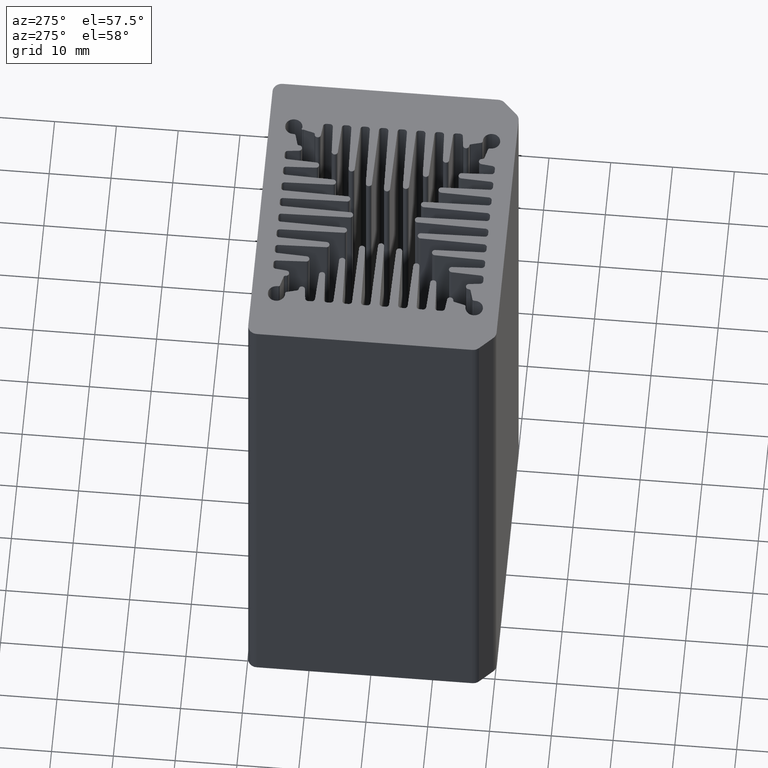
[diagram: clean part render]
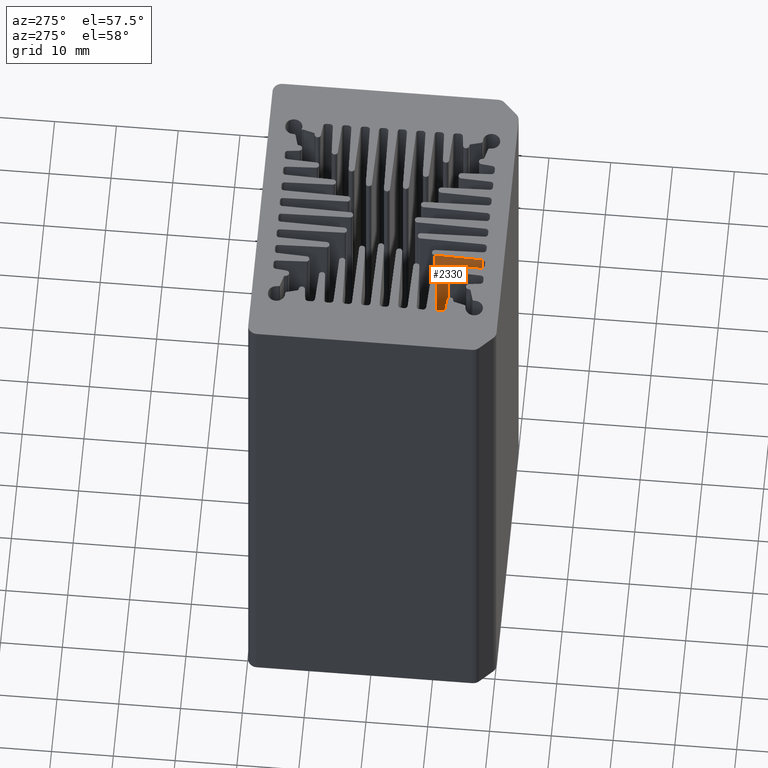
[diagram: same view with one face highlighted and labeled with its STEP entity id]
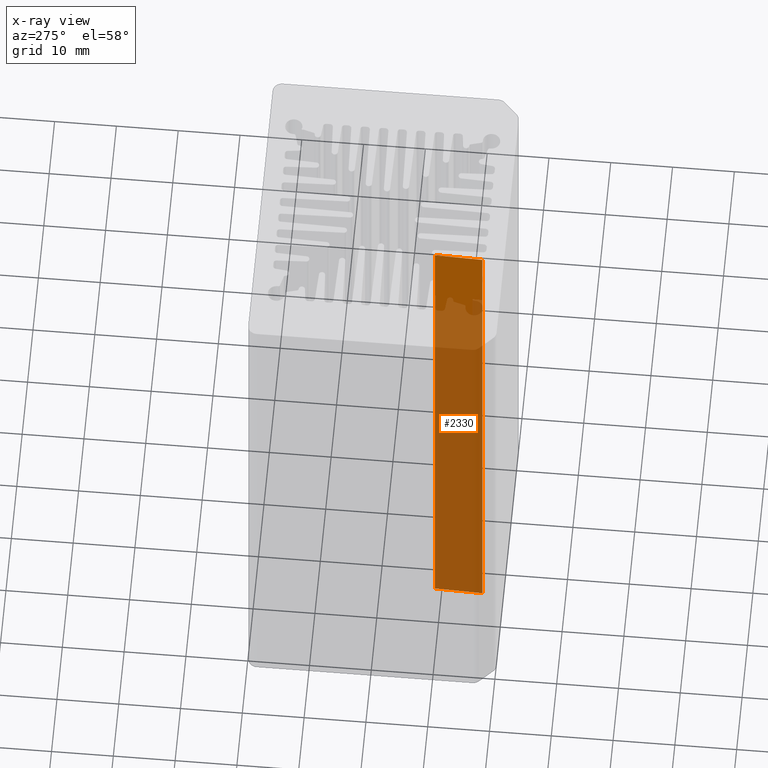
[diagram: x-ray of the same camera — body ghosted, the highlighted face saturated]
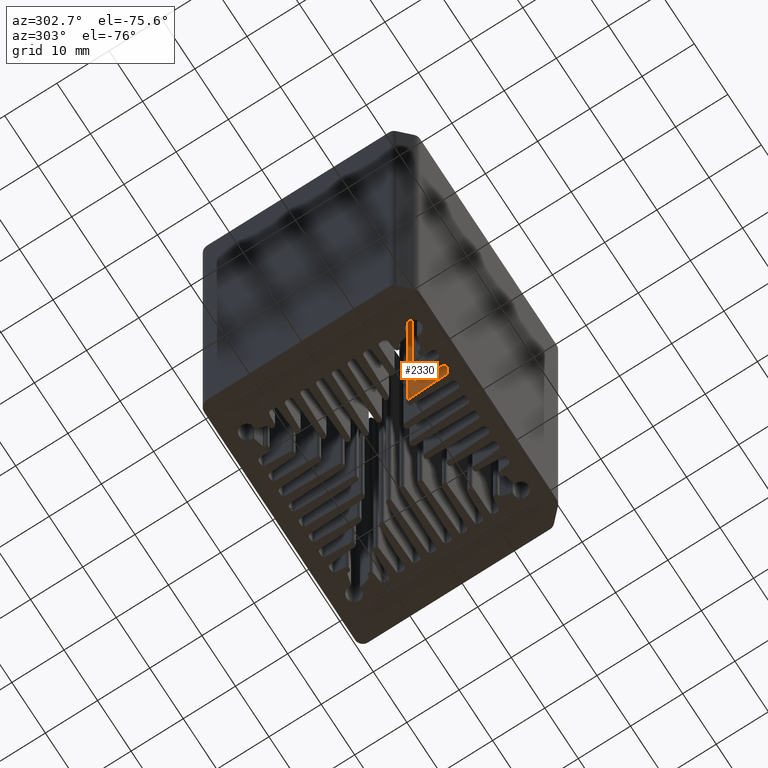
[diagram: same view with one face highlighted and labeled with its STEP entity id]
A machine part, auxiliary view. The second image highlights one B-rep face of the part: STEP entity #2330.
The next image is the same camera in x-ray: the body ghosted, the highlighted face saturated — about 86% of this face is hidden behind the body in this view.
A second angle (auxiliary view) of the same face is appended — the face is thin or edge-on in the first view.
In plain terms, the highlighted planar face has unit normal (-0.9995, 0.0305, 0).
Its self-contained STEP definition (entity closure, byte-faithful):
#117 = VECTOR ( 'NONE', #5307, 1000.000000000000114 ) ;
#430 = EDGE_CURVE ( 'NONE', #6065, #990, #4253, .T. ) ;
#840 = DIRECTION ( 'NONE',  ( 0.03047361894657577008, 0.9995355714271997316, -0.000000000000000000 ) ) ;
#925 = CARTESIAN_POINT ( 'NONE',  ( 515.2962067834736217, 701.0624487399849158, 0.000000000000000000 ) ) ;
#988 = PLANE ( 'NONE',  #3511 ) ;
#990 = VERTEX_POINT ( 'NONE', #925 ) ;
#1632 = DIRECTION ( 'NONE',  ( -0.9995355714271998426, 0.03047361894657577355, 0.000000000000000000 ) ) ;
#2046 = DIRECTION ( 'NONE',  ( -0.000000000000000000, -0.000000000000000000, -1.000000000000000000 ) ) ;
#2070 = VECTOR ( 'NONE', #7385, 1000.000000000000000 ) ;
#2234 = CARTESIAN_POINT ( 'NONE',  ( 515.0607538837936090, 693.3395869086249377, 0.000000000000000000 ) ) ;
#2261 = LINE ( 'NONE', #6475, #3614 ) ;
#2274 = CARTESIAN_POINT ( 'NONE',  ( 515.2962067834736217, 701.0624487399849158, 100.0000000000000000 ) ) ;
#2329 = CARTESIAN_POINT ( 'NONE',  ( 515.2962067834736217, 701.0624487399849158, 100.0000000000000000 ) ) ;
#2330 = ADVANCED_FACE ( 'NONE', ( #8608 ), #988, .T. ) ;
#2955 = CARTESIAN_POINT ( 'NONE',  ( 515.0607538837936090, 693.3395869086249377, 100.0000000000000000 ) ) ;
#3160 = ORIENTED_EDGE ( 'NONE', *, *, #6187, .T. ) ;
#3213 = EDGE_CURVE ( 'NONE', #5042, #8765, #6744, .T. ) ;
#3511 = AXIS2_PLACEMENT_3D ( 'NONE', #2329, #1632, #4443 ) ;
#3614 = VECTOR ( 'NONE', #840, 1000.000000000000114 ) ;
#4253 = LINE ( 'NONE', #7084, #7551 ) ;
#4376 = ORIENTED_EDGE ( 'NONE', *, *, #5361, .F. ) ;
#4443 = DIRECTION ( 'NONE',  ( -0.03047361894657577008, -0.9995355714271997316, 0.000000000000000000 ) ) ;
#4595 = ORIENTED_EDGE ( 'NONE', *, *, #430, .T. ) ;
#4910 = ORIENTED_EDGE ( 'NONE', *, *, #3213, .F. ) ;
#5040 = EDGE_LOOP ( 'NONE', ( #4376, #4910, #3160, #4595 ) ) ;
#5042 = VERTEX_POINT ( 'NONE', #2955 ) ;
#5307 = DIRECTION ( 'NONE',  ( 0.03047361894657577008, 0.9995355714271997316, -0.000000000000000000 ) ) ;
#5361 = EDGE_CURVE ( 'NONE', #8765, #990, #2261, .T. ) ;
#5413 = CARTESIAN_POINT ( 'NONE',  ( 515.0607538837936090, 693.3395869086249377, 100.0000000000000000 ) ) ;
#5984 = LINE ( 'NONE', #8649, #117 ) ;
#6065 = VERTEX_POINT ( 'NONE', #2274 ) ;
#6187 = EDGE_CURVE ( 'NONE', #5042, #6065, #5984, .T. ) ;
#6475 = CARTESIAN_POINT ( 'NONE',  ( 515.2962067834736217, 701.0624487399849158, 0.000000000000000000 ) ) ;
#6744 = LINE ( 'NONE', #5413, #2070 ) ;
#7084 = CARTESIAN_POINT ( 'NONE',  ( 515.2962067834736217, 701.0624487399849158, 100.0000000000000000 ) ) ;
#7385 = DIRECTION ( 'NONE',  ( -0.000000000000000000, -0.000000000000000000, -1.000000000000000000 ) ) ;
#7551 = VECTOR ( 'NONE', #2046, 1000.000000000000000 ) ;
#8608 = FACE_OUTER_BOUND ( 'NONE', #5040, .T. ) ;
#8649 = CARTESIAN_POINT ( 'NONE',  ( 515.2962067834736217, 701.0624487399849158, 100.0000000000000000 ) ) ;
#8765 = VERTEX_POINT ( 'NONE', #2234 ) ;